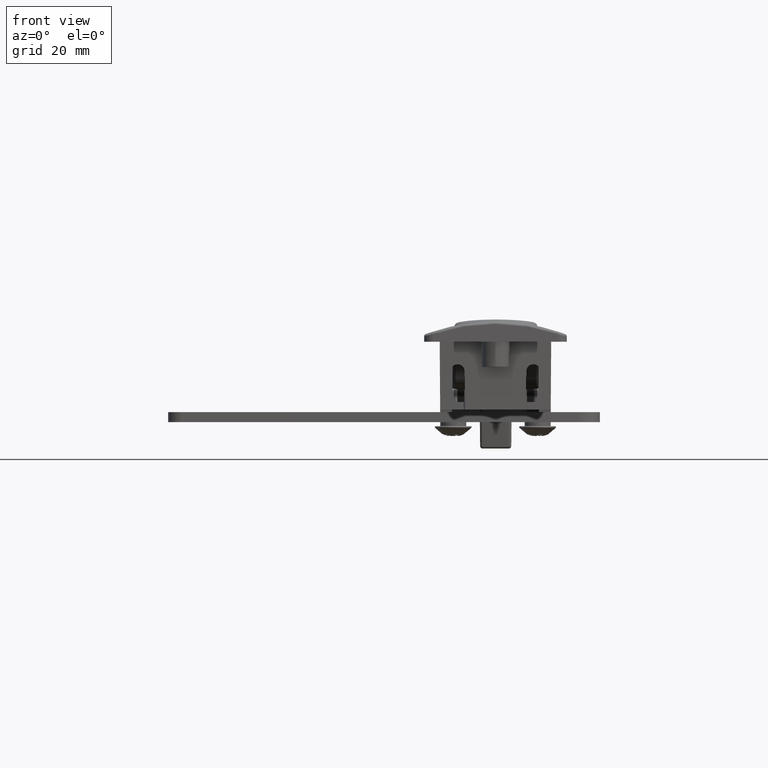
[diagram: clean part render]
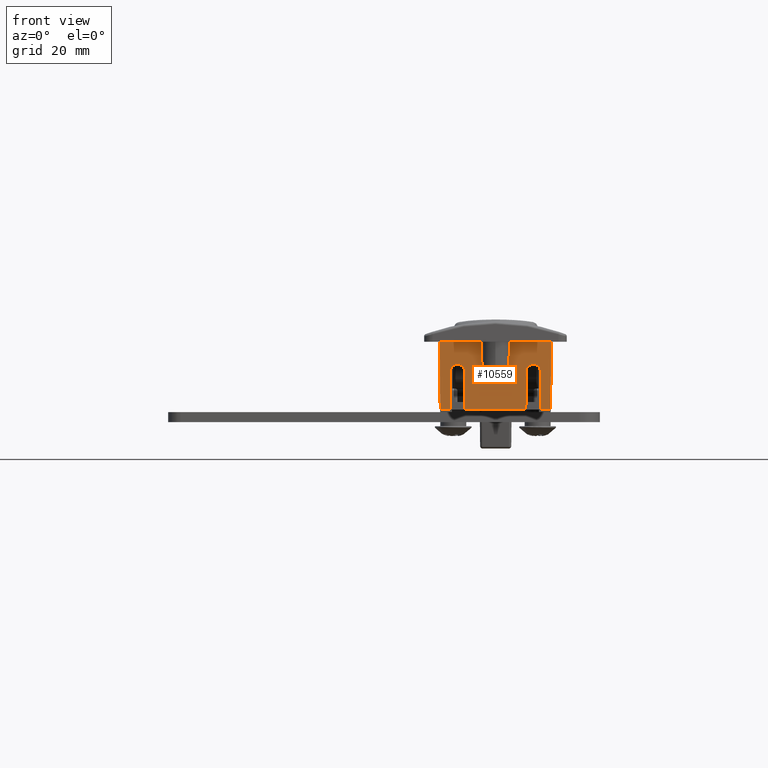
[diagram: same view with one face highlighted and labeled with its STEP entity id]
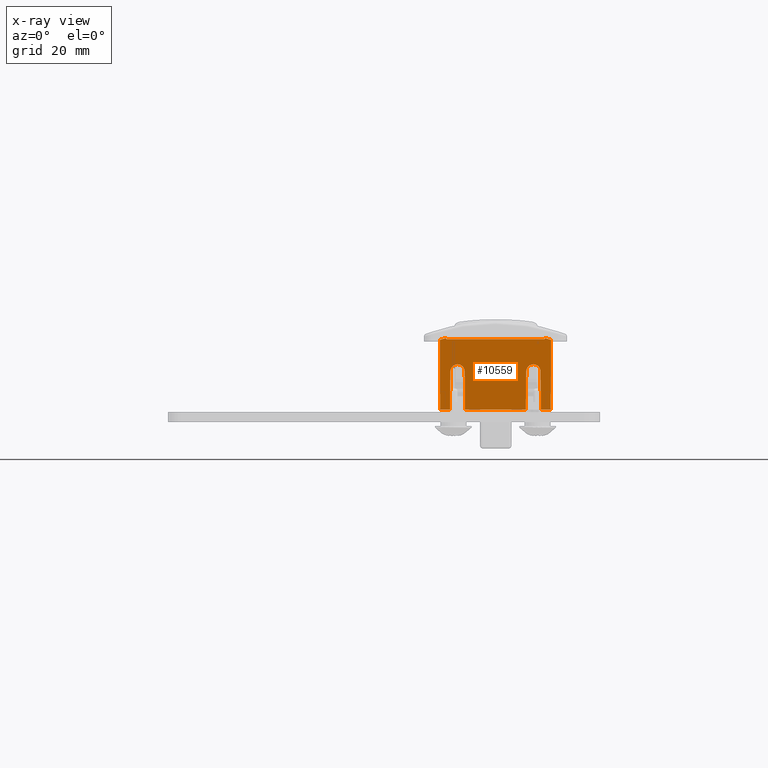
[diagram: x-ray of the same camera — body ghosted, the highlighted face saturated]
A machine part, front view. The second image highlights one B-rep face of the part: STEP entity #10559.
The next image is the same camera in x-ray: the body ghosted, the highlighted face saturated — about 0% of this face is hidden behind the body in this view.
In plain terms, the highlighted planar face has unit normal (0, 1, 0.0074).
Its self-contained STEP definition (entity closure, byte-faithful):
#402=ELLIPSE('',#11262,1.41568081002238,1.41564197264091);
#403=ELLIPSE('',#11263,38.198908609208,38.1978606713009);
#404=ELLIPSE('',#11264,38.198908609208,38.1978606713009);
#405=ELLIPSE('',#11265,1.41568081002238,1.41564197264091);
#816=FACE_OUTER_BOUND('',#1473,.T.);
#1473=EDGE_LOOP('',(#7140,#7141,#7142,#7143,#7144,#7145,#7146,#7147,#7148,
#7149,#7150,#7151,#7152,#7153,#7154,#7155,#7156,#7157,#7158,#7159));
#2693=LINE('',#15742,#3549);
#2707=LINE('',#15841,#3563);
#2708=LINE('',#15843,#3564);
#2709=LINE('',#15847,#3565);
#2710=LINE('',#15849,#3566);
#2711=LINE('',#15851,#3567);
#2712=LINE('',#15853,#3568);
#2713=LINE('',#15855,#3569);
#2714=LINE('',#15858,#3570);
#2715=LINE('',#15860,#3571);
#2716=LINE('',#15864,#3572);
#2717=LINE('',#15866,#3573);
#2718=LINE('',#15868,#3574);
#2719=LINE('',#15870,#3575);
#2720=LINE('',#15872,#3576);
#2721=LINE('',#15875,#3577);
#3549=VECTOR('',#12498,19.5938322458017);
#3563=VECTOR('',#12558,12.1);
#3564=VECTOR('',#12559,7.60076402990825);
#3565=VECTOR('',#12562,7.60076402990825);
#3566=VECTOR('',#12563,1.953571428583);
#3567=VECTOR('',#12564,13.5007147392075);
#3568=VECTOR('',#12565,0.300008230340006);
#3569=VECTOR('',#12566,0.168661246390698);
#3570=VECTOR('',#12569,0.218070103968078);
#3571=VECTOR('',#12570,0.218070104218208);
#3572=VECTOR('',#12573,0.168661246710499);
#3573=VECTOR('',#12574,0.300008230341866);
#3574=VECTOR('',#12575,13.5007147392056);
#3575=VECTOR('',#12576,1.9535714285831);
#3576=VECTOR('',#12577,7.60076402990824);
#3577=VECTOR('',#12580,7.60076402990825);
#4429=VERTEX_POINT('',#15740);
#4430=VERTEX_POINT('',#15741);
#4463=VERTEX_POINT('',#15839);
#4464=VERTEX_POINT('',#15840);
#4465=VERTEX_POINT('',#15842);
#4466=VERTEX_POINT('',#15844);
#4467=VERTEX_POINT('',#15846);
#4468=VERTEX_POINT('',#15848);
#4469=VERTEX_POINT('',#15850);
#4470=VERTEX_POINT('',#15852);
#4471=VERTEX_POINT('',#15854);
#4472=VERTEX_POINT('',#15856);
#4473=VERTEX_POINT('',#15859);
#4474=VERTEX_POINT('',#15861);
#4475=VERTEX_POINT('',#15863);
#4476=VERTEX_POINT('',#15865);
#4477=VERTEX_POINT('',#15867);
#4478=VERTEX_POINT('',#15869);
#4479=VERTEX_POINT('',#15871);
#4480=VERTEX_POINT('',#15873);
#5470=EDGE_CURVE('',#4429,#4430,#2693,.T.);
#5506=EDGE_CURVE('',#4463,#4464,#2707,.T.);
#5507=EDGE_CURVE('',#4465,#4463,#2708,.T.);
#5508=EDGE_CURVE('',#4466,#4465,#402,.T.);
#5509=EDGE_CURVE('',#4467,#4466,#2709,.T.);
#5510=EDGE_CURVE('',#4468,#4467,#2710,.T.);
#5511=EDGE_CURVE('',#4469,#4468,#2711,.T.);
#5512=EDGE_CURVE('',#4470,#4469,#2712,.T.);
#5513=EDGE_CURVE('',#4470,#4471,#2713,.T.);
#5514=EDGE_CURVE('',#4471,#4472,#403,.T.);
#5515=EDGE_CURVE('',#4472,#4430,#2714,.T.);
#5516=EDGE_CURVE('',#4429,#4473,#2715,.T.);
#5517=EDGE_CURVE('',#4473,#4474,#404,.T.);
#5518=EDGE_CURVE('',#4474,#4475,#2716,.T.);
#5519=EDGE_CURVE('',#4476,#4475,#2717,.T.);
#5520=EDGE_CURVE('',#4476,#4477,#2718,.T.);
#5521=EDGE_CURVE('',#4478,#4477,#2719,.T.);
#5522=EDGE_CURVE('',#4479,#4478,#2720,.T.);
#5523=EDGE_CURVE('',#4480,#4479,#405,.T.);
#5524=EDGE_CURVE('',#4464,#4480,#2721,.T.);
#7140=ORIENTED_EDGE('',*,*,#5506,.F.);
#7141=ORIENTED_EDGE('',*,*,#5507,.F.);
#7142=ORIENTED_EDGE('',*,*,#5508,.F.);
#7143=ORIENTED_EDGE('',*,*,#5509,.F.);
#7144=ORIENTED_EDGE('',*,*,#5510,.F.);
#7145=ORIENTED_EDGE('',*,*,#5511,.F.);
#7146=ORIENTED_EDGE('',*,*,#5512,.F.);
#7147=ORIENTED_EDGE('',*,*,#5513,.T.);
#7148=ORIENTED_EDGE('',*,*,#5514,.T.);
#7149=ORIENTED_EDGE('',*,*,#5515,.T.);
#7150=ORIENTED_EDGE('',*,*,#5470,.F.);
#7151=ORIENTED_EDGE('',*,*,#5516,.T.);
#7152=ORIENTED_EDGE('',*,*,#5517,.T.);
#7153=ORIENTED_EDGE('',*,*,#5518,.T.);
#7154=ORIENTED_EDGE('',*,*,#5519,.F.);
#7155=ORIENTED_EDGE('',*,*,#5520,.T.);
#7156=ORIENTED_EDGE('',*,*,#5521,.F.);
#7157=ORIENTED_EDGE('',*,*,#5522,.F.);
#7158=ORIENTED_EDGE('',*,*,#5523,.F.);
#7159=ORIENTED_EDGE('',*,*,#5524,.F.);
#10294=PLANE('',#11261);
#10559=ADVANCED_FACE('',(#816),#10294,.F.);
#11261=AXIS2_PLACEMENT_3D('',#15838,#12556,#12557);
#11262=AXIS2_PLACEMENT_3D('',#15845,#12560,#12561);
#11263=AXIS2_PLACEMENT_3D('',#15857,#12567,#12568);
#11264=AXIS2_PLACEMENT_3D('',#15862,#12571,#12572);
#11265=AXIS2_PLACEMENT_3D('',#15874,#12578,#12579);
#12498=DIRECTION('',(0.,1.,0.));
#12556=DIRECTION('center_axis',(-0.999972566286701,0.,0.00740720419514826));
#12557=DIRECTION('ref_axis',(-0.00740720419514673,0.,-0.999972566286701));
#12558=DIRECTION('',(0.,-1.,0.));
#12559=DIRECTION('',(-0.00740674702773591,-0.011110120540956,-0.999910848686038));
#12560=DIRECTION('center_axis',(0.999972566286701,0.,-0.00740720419514825));
#12561=DIRECTION('ref_axis',(0.00740720419514825,0.,0.999972566286701));
#12562=DIRECTION('',(0.00740674702773591,-0.011110120540956,0.999910848686038));
#12563=DIRECTION('',(0.,-1.,0.));
#12564=DIRECTION('',(-0.00740701525345462,-0.00714247899398617,-0.999947059158061));
#12565=DIRECTION('',(-0.00740720419514826,0.,-0.999972566286701));
#12566=DIRECTION('',(0.,1.,0.));
#12567=DIRECTION('center_axis',(0.999972566286701,0.,-0.00740720419514825));
#12568=DIRECTION('ref_axis',(0.00740720419514825,0.,0.999972566286701));
#12569=DIRECTION('',(-0.00737901908458147,-0.0871533699037656,-0.996167576360407));
#12570=DIRECTION('',(0.0073790190845816,-0.0871533699035652,0.996167576360424));
#12571=DIRECTION('center_axis',(0.999972566286701,0.,-0.00740720419514825));
#12572=DIRECTION('ref_axis',(0.00740720419514825,0.,0.999972566286701));
#12573=DIRECTION('',(0.,1.,0.));
#12574=DIRECTION('',(0.00740720419514826,0.,0.999972566286701));
#12575=DIRECTION('',(-0.00740701525345462,0.00714247899398617,-0.999947059158061));
#12576=DIRECTION('',(0.,-1.,0.));
#12577=DIRECTION('',(-0.00740674702773591,-0.011110120540956,-0.999910848686038));
#12578=DIRECTION('center_axis',(0.999972566286701,0.,-0.00740720419514825));
#12579=DIRECTION('ref_axis',(0.00740720419514825,0.,0.999972566286701));
#12580=DIRECTION('',(0.00740674702773591,-0.011110120540956,0.999910848686038));
#15740=CARTESIAN_POINT('',(143.599578090443,43.3082077672428,-3.49999999995074));
#15741=CARTESIAN_POINT('',(143.599578090443,62.9020400130445,-3.49999999995074));
#15742=CARTESIAN_POINT('',(143.599578090443,119.305123889836,-3.49999999995074));
#15838=CARTESIAN_POINT('Origin',(143.595874386739,119.305123889836,-3.99999999995345));
#15839=CARTESIAN_POINT('',(143.495874386733,59.1551238898242,-17.5000000000086));
#15840=CARTESIAN_POINT('',(143.495874386733,47.0551238898242,-17.5000000000086));
#15841=CARTESIAN_POINT('',(143.495874386733,119.305123889836,-17.4999999999534));
#15842=CARTESIAN_POINT('',(143.55217132312,59.2395692943998,-9.89991358820073));
#15843=CARTESIAN_POINT('',(143.600811777877,59.3125299765309,-3.33345219640663));
#15844=CARTESIAN_POINT('',(143.55217132312,62.0706784852485,-9.89991358820074));
#15845=CARTESIAN_POINT('Origin',(143.552054816569,60.6551238898242,-9.91564197259434));
#15846=CARTESIAN_POINT('',(143.495874386733,62.1551238898242,-17.5000000000086));
#15847=CARTESIAN_POINT('',(143.591159178202,62.0121967026279,-4.63655315234067));
#15848=CARTESIAN_POINT('',(143.495874386733,64.1086953184072,-17.4999999999534));
#15849=CARTESIAN_POINT('',(143.495874386733,119.305123889836,-17.4999999999534));
#15850=CARTESIAN_POINT('',(143.595874386739,64.2051238898358,-3.99999999995096));
#15851=CARTESIAN_POINT('',(143.598789421981,64.2079348166763,-3.60647024228452));
#15852=CARTESIAN_POINT('',(143.598096608961,64.2051238898358,-3.69999999995073));
#15853=CARTESIAN_POINT('',(143.595874386739,64.2051238898358,-3.99999999995345));
#15854=CARTESIAN_POINT('',(143.598096608961,64.3737851362265,-3.69999999995073));
#15855=CARTESIAN_POINT('',(143.598096608961,119.305123889836,-3.69999999995073));
#15856=CARTESIAN_POINT('',(143.601187233902,62.9210455574806,-3.2827656330042));
#15857=CARTESIAN_POINT('Origin',(143.327742085455,53.1051238896642,-40.197860671151));
#15858=CARTESIAN_POINT('',(143.59522924056,62.8506758793908,-4.08709473409798));
#15859=CARTESIAN_POINT('',(143.601187233904,43.289202222785,-3.28276563275502));
#15860=CARTESIAN_POINT('',(143.602372629548,43.2752015508994,-3.12273722082886));
#15861=CARTESIAN_POINT('',(143.598096608961,41.836462643102,-3.69999999995073));
#15862=CARTESIAN_POINT('Origin',(143.327742085455,53.1051238896642,-40.197860671151));
#15863=CARTESIAN_POINT('',(143.598096608961,42.0051238898125,-3.69999999995073));
#15864=CARTESIAN_POINT('',(143.598096608961,119.305123889836,-3.69999999995073));
#15865=CARTESIAN_POINT('',(143.595874386739,42.0051238898125,-3.99999999995282));
#15866=CARTESIAN_POINT('',(143.595874386739,42.0051238898125,-3.99999999995345));
#15867=CARTESIAN_POINT('',(143.495874386733,42.1015524612411,-17.4999999999534));
#15868=CARTESIAN_POINT('',(143.591784872688,42.0090673497902,-4.55208439682852));
#15869=CARTESIAN_POINT('',(143.495874386733,44.0551238898242,-17.5000000000086));
#15870=CARTESIAN_POINT('',(143.495874386733,119.305123889836,-17.4999999999534));
#15871=CARTESIAN_POINT('',(143.55217132312,44.1395692943998,-9.89991358820074));
#15872=CARTESIAN_POINT('',(143.602054354646,44.2143938416852,-3.16570433251405));
#15873=CARTESIAN_POINT('',(143.55217132312,46.9706784852485,-9.89991358820073));
#15874=CARTESIAN_POINT('Origin',(143.552054816569,45.5551238898242,-9.91564197259434));
#15875=CARTESIAN_POINT('',(143.589916601433,46.9140605677822,-4.80430101623325));